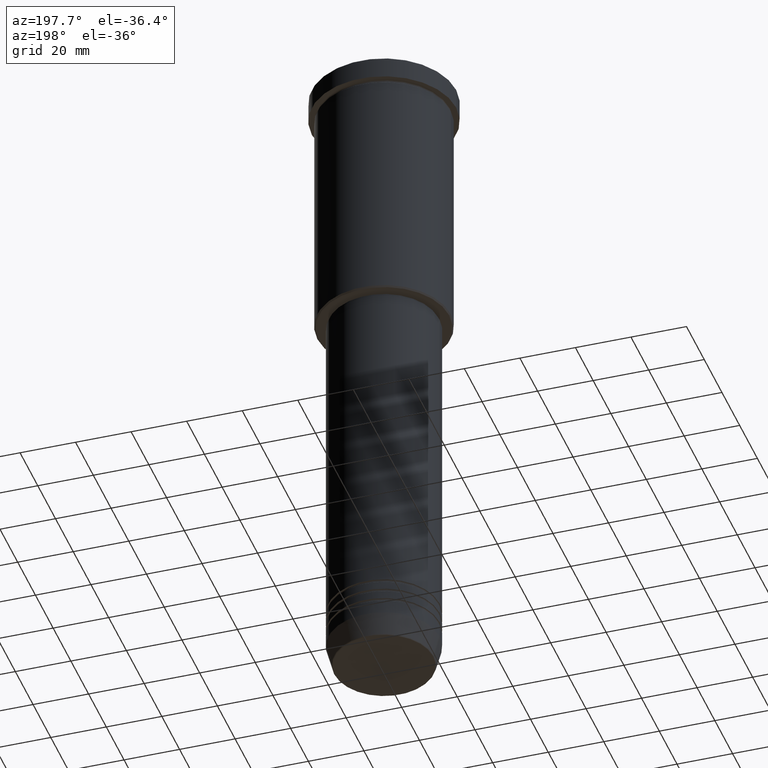
[diagram: clean part render]
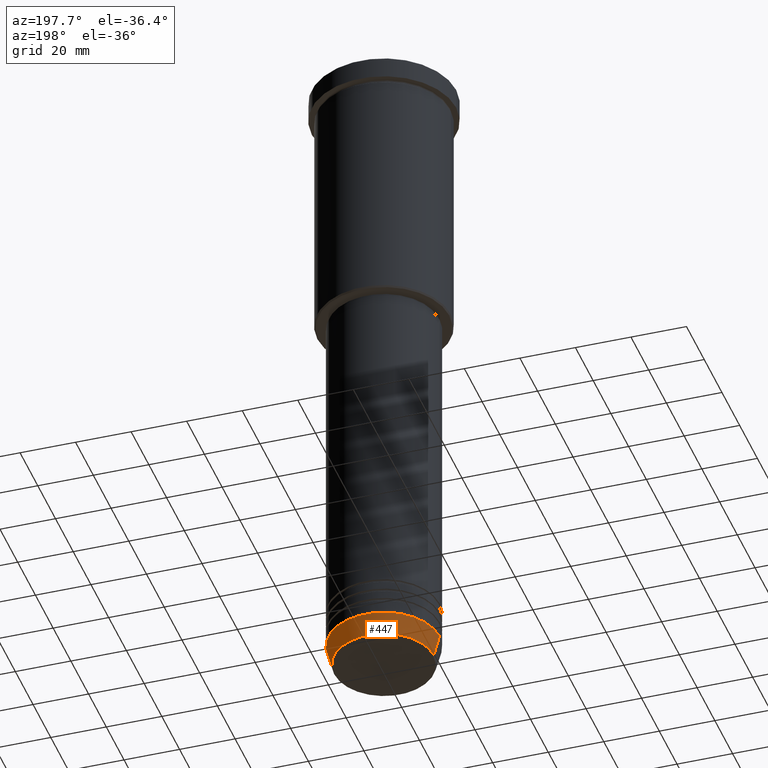
[diagram: same view with one face highlighted and labeled with its STEP entity id]
A machine part, auxiliary view. The second image highlights one B-rep face of the part: STEP entity #447.
In plain terms, the highlighted conical surface has half-angle 15 deg.
Its self-contained STEP definition (entity closure, byte-faithful):
#57 = CARTESIAN_POINT ( 'NONE',  ( -17.95570587970607690, 2.324116685748021371E-15, -239.6294095225512706 ) ) ;
#62 = ORIENTED_EDGE ( 'NONE', *, *, #1044, .T. ) ;
#88 = CARTESIAN_POINT ( 'NONE',  ( 0.000000000000000000, 0.000000000000000000, -239.6294095225512706 ) ) ;
#92 = CARTESIAN_POINT ( 'NONE',  ( -20.00000000000000355, 2.449293598294706907E-15, -232.0000000000000000 ) ) ;
#93 = CARTESIAN_POINT ( 'NONE',  ( 0.000000000000000000, 0.000000000000000000, -232.0000000000000000 ) ) ;
#157 = LINE ( 'NONE', #329, #913 ) ;
#267 = CARTESIAN_POINT ( 'NONE',  ( 17.95570587970607690, 0.000000000000000000, -239.6294095225512706 ) ) ;
#271 = CONICAL_SURFACE ( 'NONE', #1038, 20.00000000000000355, 0.2617993877991500740 ) ;
#276 = EDGE_CURVE ( 'NONE', #414, #1130, #157, .T. ) ;
#293 = DIRECTION ( 'NONE',  ( 1.000000000000000000, 0.000000000000000000, 0.000000000000000000 ) ) ;
#329 = CARTESIAN_POINT ( 'NONE',  ( 20.00000000000000355, 0.000000000000000000, -232.0000000000000000 ) ) ;
#377 = CARTESIAN_POINT ( 'NONE',  ( 0.000000000000000000, 0.000000000000000000, -232.0000000000000000 ) ) ;
#395 = CARTESIAN_POINT ( 'NONE',  ( 20.00000000000000355, 0.000000000000000000, -232.0000000000000000 ) ) ;
#414 = VERTEX_POINT ( 'NONE', #267 ) ;
#438 = ORIENTED_EDGE ( 'NONE', *, *, #276, .F. ) ;
#447 = ADVANCED_FACE ( 'NONE', ( #620 ), #271, .T. ) ;
#458 = AXIS2_PLACEMENT_3D ( 'NONE', #377, #1008, #856 ) ;
#462 = DIRECTION ( 'NONE',  ( -0.2588190451025213501, 3.169619151431772337E-17, 0.9659258262890680902 ) ) ;
#463 = DIRECTION ( 'NONE',  ( -0.000000000000000000, -0.000000000000000000, 1.000000000000000000 ) ) ;
#510 = VECTOR ( 'NONE', #462, 1000.000000000000000 ) ;
#531 = CIRCLE ( 'NONE', #458, 20.00000000000000355 ) ;
#620 = FACE_OUTER_BOUND ( 'NONE', #765, .T. ) ;
#626 = VERTEX_POINT ( 'NONE', #57 ) ;
#648 = AXIS2_PLACEMENT_3D ( 'NONE', #88, #1108, #293 ) ;
#688 = EDGE_CURVE ( 'NONE', #1130, #1046, #531, .T. ) ;
#765 = EDGE_LOOP ( 'NONE', ( #1127, #62, #925, #438 ) ) ;
#794 = EDGE_CURVE ( 'NONE', #414, #626, #1120, .T. ) ;
#856 = DIRECTION ( 'NONE',  ( 1.000000000000000000, 0.000000000000000000, 0.000000000000000000 ) ) ;
#913 = VECTOR ( 'NONE', #966, 1000.000000000000000 ) ;
#919 = LINE ( 'NONE', #92, #510 ) ;
#925 = ORIENTED_EDGE ( 'NONE', *, *, #688, .F. ) ;
#966 = DIRECTION ( 'NONE',  ( 0.2588190451025213501, 0.000000000000000000, 0.9659258262890680902 ) ) ;
#983 = DIRECTION ( 'NONE',  ( 1.000000000000000000, 0.000000000000000000, 0.000000000000000000 ) ) ;
#1008 = DIRECTION ( 'NONE',  ( -0.000000000000000000, -0.000000000000000000, 1.000000000000000000 ) ) ;
#1038 = AXIS2_PLACEMENT_3D ( 'NONE', #93, #463, #983 ) ;
#1044 = EDGE_CURVE ( 'NONE', #626, #1046, #919, .T. ) ;
#1046 = VERTEX_POINT ( 'NONE', #1107 ) ;
#1107 = CARTESIAN_POINT ( 'NONE',  ( -20.00000000000000355, 2.449293598294706907E-15, -232.0000000000000000 ) ) ;
#1108 = DIRECTION ( 'NONE',  ( -0.000000000000000000, -0.000000000000000000, 1.000000000000000000 ) ) ;
#1120 = CIRCLE ( 'NONE', #648, 17.95570587970607690 ) ;
#1127 = ORIENTED_EDGE ( 'NONE', *, *, #794, .T. ) ;
#1130 = VERTEX_POINT ( 'NONE', #395 ) ;